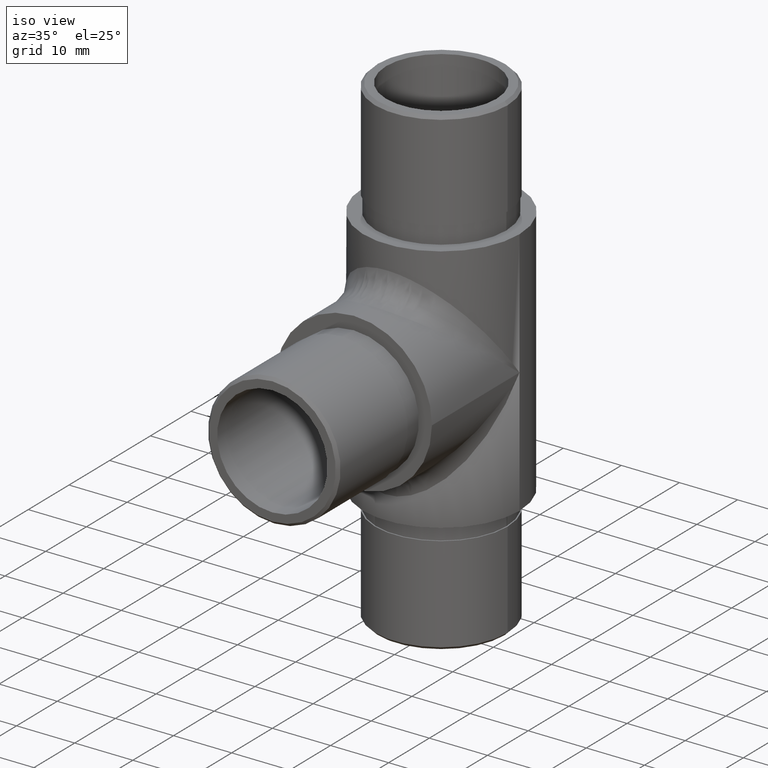
[diagram: clean part render]
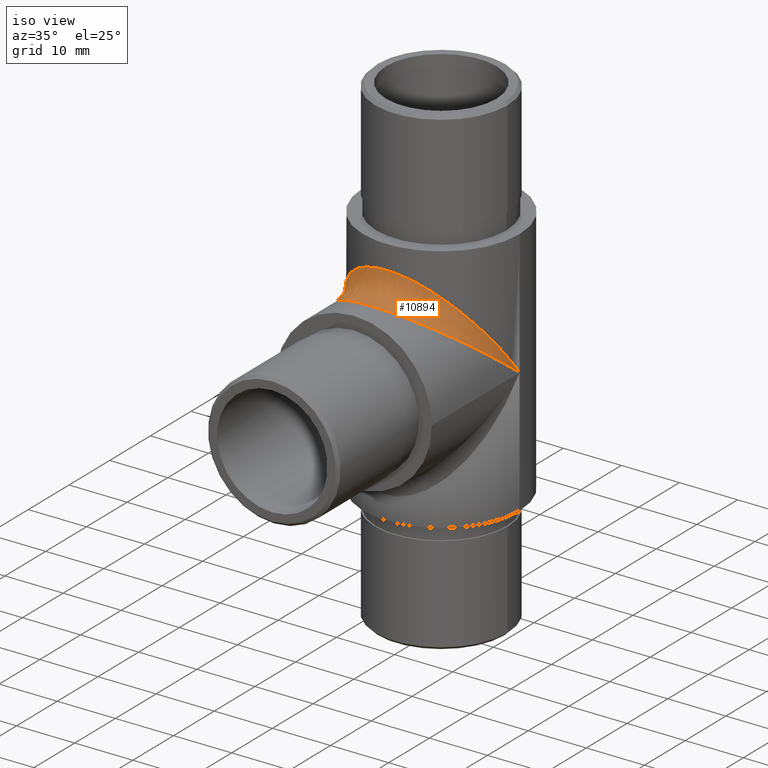
[diagram: same view with one face highlighted and labeled with its STEP entity id]
A machine part, iso view. The second image highlights one B-rep face of the part: STEP entity #10894.
In plain terms, the highlighted face is a freeform B-spline surface patch.
Its self-contained STEP definition (entity closure, byte-faithful):
#476 = CARTESIAN_POINT ( 'NONE',  ( 13.01982392487375700, 36.97551917981839200, 3.487350546204532900 ) ) ;
#614 = CARTESIAN_POINT ( 'NONE',  ( -12.76305610663408500, 35.87733676126259000, 4.333800605209387600 ) ) ;
#672 = CARTESIAN_POINT ( 'NONE',  ( 3.487350545992933300, 24.60810948030648900, 13.01982392491565800 ) ) ;
#678 = CARTESIAN_POINT ( 'NONE',  ( 13.44999999999999400, 6.599999999994062200, 26.90000000000000900 ) ) ;
#715 = CARTESIAN_POINT ( 'NONE',  ( 5.960383725262566700, 29.41069668201132700, 15.68463515975996200 ) ) ;
#765 = CARTESIAN_POINT ( 'NONE',  ( -9.962209205124512600, 32.33118331529735200, 9.168816684698477100 ) ) ;
#818 = CARTESIAN_POINT ( 'NONE',  ( -7.054827041779410600, 29.92907421062020700, 11.57092578936716300 ) ) ;
#868 = CARTESIAN_POINT ( 'NONE',  ( -12.89222839911292000, 37.50289924576191700, 3.997100754241184300 ) ) ;
#912 = CARTESIAN_POINT ( 'NONE',  ( -13.36330011797410200, 39.21582858180408200, 1.760579116024438000 ) ) ;
#1069 = CARTESIAN_POINT ( 'NONE',  ( -13.36330011797406700, 39.73942088396597700, 2.284171418187720200 ) ) ;
#1576 = CARTESIAN_POINT ( 'NONE',  ( 12.08930331792176300, 35.53961627458730300, 7.732988550808683700 ) ) ;
#1623 = CARTESIAN_POINT ( 'NONE',  ( 13.44999999999859600, 40.48879775430319900, 1.011202245686868600 ) ) ;
#1683 = CARTESIAN_POINT ( 'NONE',  ( 13.44999999999999800, 41.49999999999711500, -3.751757152883914000E-012 ) ) ;
#1724 = CARTESIAN_POINT ( 'NONE',  ( 7.826289490384745300, 30.43128300449903300, 11.06871699549405500 ) ) ;
#1768 = CARTESIAN_POINT ( 'NONE',  ( 0.8803004409930499400, 28.04999999999250400, 17.44999999999999600 ) ) ;
#1815 = CARTESIAN_POINT ( 'NONE',  ( -0.8803004409929341400, 24.04999999999250400, 13.44999999999999800 ) ) ;
#1869 = CARTESIAN_POINT ( 'NONE',  ( -8.204362700590856200, 27.62537193332929100, 10.69419756427592600 ) ) ;
#1912 = CARTESIAN_POINT ( 'NONE',  ( 8.888119795539900300, 31.36694738161452300, 13.14659986548031000 ) ) ;
#1965 = VERTEX_POINT ( 'NONE', #8714 ) ;
#2111 = CARTESIAN_POINT ( 'NONE',  ( -13.33585166001099300, 39.47138319865461400, 2.028616801329067100 ) ) ;
#2581 = CARTESIAN_POINT ( 'NONE',  ( 13.44999999999999800, 41.49999999999668900, -3.321756333069138900E-012 ) ) ;
#2598 = EDGE_LOOP ( 'NONE', ( #8948, #14031 ) ) ;
#2673 = CARTESIAN_POINT ( 'NONE',  ( 11.67233500670811200, 34.75952343242405400, 8.745079264240832400 ) ) ;
#2763 = CARTESIAN_POINT ( 'NONE',  ( 11.67233500670943700, 32.75492073574780200, 6.740476567565897500 ) ) ;
#2812 = CARTESIAN_POINT ( 'NONE',  ( 8.204362700591621800, 27.62537193332927300, 10.69419756427541800 ) ) ;
#2822 = CARTESIAN_POINT ( 'NONE',  ( -13.45000000000000100, 41.49999999999250400, 0.0000000000000000000 ) ) ;
#2871 = CARTESIAN_POINT ( 'NONE',  ( 4.333800605359472900, 24.94123947510925300, 12.76305610657212400 ) ) ;
#2916 = CARTESIAN_POINT ( 'NONE',  ( -3.251151502455407200, 28.37768468058094100, 13.12231531940744300 ) ) ;
#2967 = CARTESIAN_POINT ( 'NONE',  ( 0.6185010550566798500, 28.04999999999250400, 13.44999999999999800 ) ) ;
#3013 = CARTESIAN_POINT ( 'NONE',  ( 6.740476567639050600, 29.82766499333196500, 15.14366140269518500 ) ) ;
#3072 = CARTESIAN_POINT ( 'NONE',  ( -13.44999999999999800, 41.49999999999710800, -3.747483135554889500E-012 ) ) ;
#3206 = CARTESIAN_POINT ( 'NONE',  ( 13.44999999999999400, 14.59999999999250000, 34.89999999999998400 ) ) ;
#3728 = CARTESIAN_POINT ( 'NONE',  ( 12.89222839911591700, 37.50289924575110200, 3.997100754241550600 ) ) ;
#3808 = CARTESIAN_POINT ( 'NONE',  ( 13.33585166000806900, 39.47138319866555600, 2.028616801328466200 ) ) ;
#3860 = CARTESIAN_POINT ( 'NONE',  ( 13.36330011797600300, 39.73942088397571100, 2.284171418187563400 ) ) ;
#3915 = CARTESIAN_POINT ( 'NONE',  ( 1.760579116241604000, 24.16248423360595500, 13.36330011793109700 ) ) ;
#3960 = CARTESIAN_POINT ( 'NONE',  ( -12.08930331792120000, 33.76701144918603600, 5.960383725407477400 ) ) ;
#4008 = CARTESIAN_POINT ( 'NONE',  ( -10.13305261838198500, 32.61188020445611400, 11.53142679792633300 ) ) ;
#4064 = CARTESIAN_POINT ( 'NONE',  ( 4.733780939930510600, 28.81696160274548300, 12.68303839724620200 ) ) ;
#4107 = CARTESIAN_POINT ( 'NONE',  ( -5.960383725262608400, 29.41069668201134500, 15.68463515975993700 ) ) ;
#4319 = VERTEX_POINT ( 'NONE', #4370 ) ;
#4370 = CARTESIAN_POINT ( 'NONE',  ( -13.45000000000000100, 41.49999999999250400, 0.0000000000000000000 ) ) ;
#4870 = CARTESIAN_POINT ( 'NONE',  ( 10.13305261838154400, 29.96857320206374500, 8.888119795536443500 ) ) ;
#4975 = CARTESIAN_POINT ( 'NONE',  ( -13.44999999999999000, 6.599999999994062200, 26.90000000000000900 ) ) ;
#5016 = CARTESIAN_POINT ( 'NONE',  ( -4.333800605360895700, 28.73694389342112400, 16.55876052488322600 ) ) ;
#5074 = CARTESIAN_POINT ( 'NONE',  ( -12.55744004400127900, 36.54091678937204800, 4.959083210619911400 ) ) ;
#5127 = CARTESIAN_POINT ( 'NONE',  ( 6.740476567637457200, 26.35633859729845000, 11.67233500666185200 ) ) ;
#5174 = CARTESIAN_POINT ( 'NONE',  ( -3.487350545992760100, 24.60810948030447400, 13.01982392491569100 ) ) ;
#5218 = CARTESIAN_POINT ( 'NONE',  ( 5.960383725262731900, 25.81536484023254000, 12.08930331798095300 ) ) ;
#5473 = CARTESIAN_POINT ( 'NONE',  ( -13.45000000000018600, 40.35788721521078100, 0.8803104272429027600 ) ) ;
#5977 = CARTESIAN_POINT ( 'NONE',  ( 9.962209205126809400, 32.33118331530010200, 9.168816684697034700 ) ) ;
#6125 = CARTESIAN_POINT ( 'NONE',  ( -10.13305261838215000, 29.96857320206616700, 8.888119795535841300 ) ) ;
#6173 = CARTESIAN_POINT ( 'NONE',  ( 8.204362700591618200, 30.80580243571682800, 13.87462806666209200 ) ) ;
#6216 = CARTESIAN_POINT ( 'NONE',  ( -1.760579116241890000, 28.13669988206152800, 17.33751576638452400 ) ) ;
#6270 = CARTESIAN_POINT ( 'NONE',  ( -11.67233500670951200, 32.75492073575224300, 6.740476567565783800 ) ) ;
#6323 = CARTESIAN_POINT ( 'NONE',  ( -8.888119795538012000, 28.35340013451097400, 10.13305261838024200 ) ) ;
#6938 =( BOUNDED_CURVE ( )  B_SPLINE_CURVE ( 3, ( #8162, #678, #4975, #2822 ),
 .UNSPECIFIED., .F., .F. ) 
 B_SPLINE_CURVE_WITH_KNOTS ( ( 4, 4 ),
 ( 1.570796326794896800, 4.712388980384689700 ),
 .UNSPECIFIED. ) 
 CURVE ( )  GEOMETRIC_REPRESENTATION_ITEM ( )  RATIONAL_B_SPLINE_CURVE ( ( 1.000000000000000000, 0.3333333333333333700, 0.3333333333333333700, 1.000000000000000000 ) ) 
 REPRESENTATION_ITEM ( '' )  );
#7199 = CARTESIAN_POINT ( 'NONE',  ( -10.69419756423298700, 33.29563729933760600, 10.64432186814122400 ) ) ;
#7242 = CARTESIAN_POINT ( 'NONE',  ( -12.76305610663505500, 37.16619939478454900, 5.622663238729241000 ) ) ;
#7302 = CARTESIAN_POINT ( 'NONE',  ( -6.740476567639461800, 29.82766499333223800, 15.14366140269403600 ) ) ;
#7342 = CARTESIAN_POINT ( 'NONE',  ( -0.8803004409930466100, 28.04999999999250400, 17.44999999999999600 ) ) ;
#7500 = CARTESIAN_POINT ( 'NONE',  ( -13.01982392487378000, 36.97551917982450200, 3.487350546204431200 ) ) ;
#7544 = CARTESIAN_POINT ( 'NONE',  ( -13.44999999999999800, 41.49999999999624800, -2.888461213364656900E-012 ) ) ;
#7590 = CARTESIAN_POINT ( 'NONE',  ( -13.44999999999859600, 40.48879775431578300, 1.011202245691079400 ) ) ;
#7960 = FACE_OUTER_BOUND ( 'NONE', #2598, .T. ) ;
#8101 = CARTESIAN_POINT ( 'NONE',  ( 11.70026303290309100, 34.73253009091049400, 6.767469909086903700 ) ) ;
#8162 = CARTESIAN_POINT ( 'NONE',  ( 13.45000000000000100, 41.49999999999250400, 0.0000000000000000000 ) ) ;
#8197 = CARTESIAN_POINT ( 'NONE',  ( 13.44999999999999800, 41.49999999999625500, -2.891755513254363700E-012 ) ) ;
#8244 = CARTESIAN_POINT ( 'NONE',  ( 10.13305261838198700, 32.61188020445612800, 11.53142679792754200 ) ) ;
#8299 = CARTESIAN_POINT ( 'NONE',  ( 2.554661403383726700, 28.24603728105214600, 13.25396271894142300 ) ) ;
#8360 = CARTESIAN_POINT ( 'NONE',  ( 1.231024211894390800, 28.08116757911519600, 13.41883242087635600 ) ) ;
#8399 = CARTESIAN_POINT ( 'NONE',  ( -11.16885367848702300, 33.87956908818716100, 7.620430911803512500 ) ) ;
#8448 = CARTESIAN_POINT ( 'NONE',  ( 3.487350545993469700, 28.48017607507687600, 16.89189051968601200 ) ) ;
#8714 = CARTESIAN_POINT ( 'NONE',  ( 13.45000000000000100, 41.49999999999250400, 0.0000000000000000000 ) ) ;
#8948 = ORIENTED_EDGE ( 'NONE', *, *, #10765, .F. ) ;
#9105 = EDGE_CURVE ( 'NONE', #1965, #4319, #6938, .T. ) ;
#9240 = CARTESIAN_POINT ( 'NONE',  ( 13.36330011797411500, 39.21582858181013600, 1.760579116024375300 ) ) ;
#9286 = CARTESIAN_POINT ( 'NONE',  ( 13.44999999999980700, 40.61968957274084600, 1.142112784777824500 ) ) ;
#9349 = CARTESIAN_POINT ( 'NONE',  ( 4.333800605360854000, 28.73694389342110600, 16.55876052488325100 ) ) ;
#9393 = CARTESIAN_POINT ( 'NONE',  ( -5.960383725262022200, 25.81536484023256500, 12.08930331798124100 ) ) ;
#9438 = CARTESIAN_POINT ( 'NONE',  ( -0.6185010550566775200, 28.04999999999250400, 13.44999999999999800 ) ) ;
#9491 = CARTESIAN_POINT ( 'NONE',  ( 7.054827041784241400, 29.92907421062676600, 11.57092578937167100 ) ) ;
#9548 = CARTESIAN_POINT ( 'NONE',  ( -3.487350545993346300, 28.48017607507685200, 16.89189051968803000 ) ) ;
#9698 = CARTESIAN_POINT ( 'NONE',  ( -13.01982392487447600, 38.01264945379346500, 4.524480820168693500 ) ) ;
#9749 =( BOUNDED_CURVE ( )  B_SPLINE_CURVE ( 3, ( #12771, #10609, #3206, #13020 ),
 .UNSPECIFIED., .F., .F. ) 
 B_SPLINE_CURVE_WITH_KNOTS ( ( 4, 4 ),
 ( 1.570796326794896600, 4.712388980384689700 ),
 .UNSPECIFIED. ) 
 CURVE ( )  GEOMETRIC_REPRESENTATION_ITEM ( )  RATIONAL_B_SPLINE_CURVE ( ( 1.000000000000000000, 0.3333333333333333700, 0.3333333333333333700, 1.000000000000000000 ) ) 
 REPRESENTATION_ITEM ( '' )  );
#10283 = CARTESIAN_POINT ( 'NONE',  ( 10.69419756423101800, 30.85567813185696600, 8.204362700658407400 ) ) ;
#10425 = CARTESIAN_POINT ( 'NONE',  ( 3.251151502457130700, 28.37768468058313700, 13.12231531941066700 ) ) ;
#10471 = CARTESIAN_POINT ( 'NONE',  ( -8.888119795539898500, 31.36694738161452300, 13.14659986548152500 ) ) ;
#10533 = CARTESIAN_POINT ( 'NONE',  ( -9.277602110788350800, 31.63565125913012800, 9.864348740862944000 ) ) ;
#10572 = CARTESIAN_POINT ( 'NONE',  ( -11.67233500670908000, 34.75952343242550300, 8.745079264238970800 ) ) ;
#10609 = CARTESIAN_POINT ( 'NONE',  ( -13.44999999999999900, 14.59999999999250000, 34.89999999999998400 ) ) ;
#10619 = CARTESIAN_POINT ( 'NONE',  ( -2.554661403384747200, 28.24603728105012500, 13.25396271894342500 ) ) ;
#10765 = EDGE_CURVE ( 'NONE', #4319, #1965, #9749, .T. ) ;
#10894 = ADVANCED_FACE ( 'NONE', ( #7960 ), #11836, .F. ) ;
#11352 = CARTESIAN_POINT ( 'NONE',  ( 13.01982392487252900, 38.01264945378368800, 4.524480820168901300 ) ) ;
#11399 = CARTESIAN_POINT ( 'NONE',  ( 10.69419756423393000, 33.29563729933901300, 10.64432186813940400 ) ) ;
#11439 = CARTESIAN_POINT ( 'NONE',  ( 12.08930331792076100, 33.76701144918584400, 5.960383725408529900 ) ) ;
#11481 = CARTESIAN_POINT ( 'NONE',  ( 9.277602110787102100, 31.63565125913008900, 9.864348740862995500 ) ) ;
#11537 = CARTESIAN_POINT ( 'NONE',  ( 8.888119795538621300, 28.35340013451340700, 10.13305261837963500 ) ) ;
#11591 = CARTESIAN_POINT ( 'NONE',  ( -12.08930331792144300, 35.53961627458652800, 7.732988550807139200 ) ) ;
#11634 = CARTESIAN_POINT ( 'NONE',  ( -1.760579116241818100, 24.16248423360797700, 13.36330011793105800 ) ) ;
#11682 = CARTESIAN_POINT ( 'NONE',  ( -11.70026303290132200, 34.73253009090994700, 6.767469909084724100 ) ) ;
#11743 = CARTESIAN_POINT ( 'NONE',  ( -8.204362700591245200, 30.80580243571658300, 13.87462806666320800 ) ) ;
#11836 =( BOUNDED_SURFACE ( )  B_SPLINE_SURFACE ( 3, 2, ( 
 ( #8197, #2581, #1683 ),
 ( #13545, #1623, #9286 ),
 ( #9240, #3808, #3860 ),
 ( #476, #3728, #11352 ),
 ( #12396, #13504, #13600 ),
 ( #11439, #8101, #1576 ),
 ( #2763, #12482, #2673 ),
 ( #10283, #5977, #11399 ),
 ( #4870, #11481, #8244 ),
 ( #11537, #1724, #1912 ),
 ( #2812, #9491, #6173 ),
 ( #5127, #12725, #3013 ),
 ( #5218, #4064, #715 ),
 ( #2871, #10425, #9349 ),
 ( #672, #8299, #8448 ),
 ( #3915, #8360, #12670 ),
 ( #12828, #2967, #1768 ),
 ( #1815, #9438, #7342 ),
 ( #11634, #13799, #6216 ),
 ( #5174, #10619, #9548 ),
 ( #13840, #2916, #5016 ),
 ( #9393, #13886, #4107 ),
 ( #12624, #12779, #7302 ),
 ( #1869, #818, #11743 ),
 ( #6323, #13942, #10471 ),
 ( #6125, #10533, #4008 ),
 ( #13740, #765, #7199 ),
 ( #6270, #8399, #10572 ),
 ( #3960, #11682, #11591 ),
 ( #614, #5074, #7242 ),
 ( #7500, #868, #9698 ),
 ( #912, #2111, #1069 ),
 ( #5473, #7590, #14037 ),
 ( #7544, #11931, #3072 ) ),
 .UNSPECIFIED., .F., .F., .F. ) 
 B_SPLINE_SURFACE_WITH_KNOTS ( ( 4, 2, 2, 2, 2, 2, 2, 2, 2, 2, 2, 2, 2, 2, 2, 2, 4 ),
 ( 3, 3 ),
 ( 1.570796326794681600, 1.767145867644070600, 1.963495408493459500, 2.159844949342848400, 2.356194490192237400, 2.552544031041626300, 2.748893571891015200, 2.945243112740404200, 3.141592653589793100, 3.337942194439182100, 3.534291735288571000, 3.730641276137959900, 3.926990816987348900, 4.123340357836737800, 4.319689898686126700, 4.516039439535515700, 4.712388980384904600 ),
 ( 0.0000000000000000000, 1.000000000000000000 ),
 .UNSPECIFIED. ) 
 GEOMETRIC_REPRESENTATION_ITEM ( )  RATIONAL_B_SPLINE_SURFACE ( (
 ( 1.000000000000000000, 1.000000000000000000, 1.000000000000000000),
 ( 1.000000000000000000, 1.000009746410285100, 1.000000000000000000),
 ( 1.000000000000000000, 0.9967613244612991700, 1.000000000000000000),
 ( 1.000000000000000000, 0.9841171504864370000, 1.000000000000000000),
 ( 1.000000000000000000, 0.9747108043652704700, 1.000000000000000000),
 ( 1.000000000000000000, 0.9506740353970285500, 1.000000000000000000),
 ( 1.000000000000000000, 0.9360421842735673300, 1.000000000000000000),
 ( 1.000000000000000000, 0.9031650994128057600, 1.000000000000000000),
 ( 1.000000000000000000, 0.8849191471366230100, 1.000000000000000000),
 ( 1.000000000000000000, 0.8471316604322284300, 1.000000000000000000),
 ( 1.000000000000000000, 0.8275942695996063600, 1.000000000000000000),
 ( 1.000000000000000000, 0.7902180086437122800, 1.000000000000000000),
 ( 1.000000000000000000, 0.7723968218215497800, 1.000000000000000000),
 ( 1.000000000000000000, 0.7418334178756402800, 1.000000000000000000),
 ( 1.000000000000000000, 0.7291288940217111000, 1.000000000000000000),
 ( 1.000000000000000000, 0.7117460025216018100, 1.000000000000000000),
 ( 1.000000000000000000, 0.7071067811865475700, 1.000000000000000000),
 ( 1.000000000000000000, 0.7071067811865475700, 1.000000000000000000),
 ( 1.000000000000000000, 0.7117460025214726900, 1.000000000000000000),
 ( 1.000000000000000000, 0.7291288940218402200, 1.000000000000000000),
 ( 1.000000000000000000, 0.7418334178755052700, 1.000000000000000000),
 ( 1.000000000000000000, 0.7723968218216863400, 1.000000000000000000),
 ( 1.000000000000000000, 0.7902180086438577200, 1.000000000000000000),
 ( 1.000000000000000000, 0.8275942695994618100, 1.000000000000000000),
 ( 1.000000000000000000, 0.8471316604323059200, 1.000000000000000000),
 ( 1.000000000000000000, 0.8849191471365452900, 1.000000000000000000),
 ( 1.000000000000000000, 0.9031650994127229400, 1.000000000000000000),
 ( 1.000000000000000000, 0.9360421842736508200, 1.000000000000000000),
 ( 1.000000000000000000, 0.9506740353970922800, 1.000000000000000000),
 ( 1.000000000000000000, 0.9747108043652074100, 1.000000000000000000),
 ( 1.000000000000000000, 0.9841171504862938900, 1.000000000000000000),
 ( 1.000000000000000000, 0.9967613244614425000, 1.000000000000000000),
 ( 1.000000000000000000, 1.000009746410177400, 1.000000000000000000),
 ( 1.000000000000000000, 1.000000000000000000, 1.000000000000000000) ) ) 
 REPRESENTATION_ITEM ( '' )  SURFACE ( )  );
#11931 = CARTESIAN_POINT ( 'NONE',  ( -13.44999999999999800, 41.49999999999668200, -3.317972174459773400E-012 ) ) ;
#12396 = CARTESIAN_POINT ( 'NONE',  ( 12.76305610663450500, 35.87733676126273300, 4.333800605208373300 ) ) ;
#12482 = CARTESIAN_POINT ( 'NONE',  ( 11.16885367848489000, 33.87956908818459600, 7.620430911804794100 ) ) ;
#12624 = CARTESIAN_POINT ( 'NONE',  ( -6.740476567638261000, 26.35633859729846800, 11.67233500666131700 ) ) ;
#12670 = CARTESIAN_POINT ( 'NONE',  ( 1.760579116241725000, 28.13669988206150300, 17.33751576638654500 ) ) ;
#12725 = CARTESIAN_POINT ( 'NONE',  ( 5.506249729539828100, 29.11675223912397900, 12.38324776086312400 ) ) ;
#12771 = CARTESIAN_POINT ( 'NONE',  ( -13.45000000000000100, 41.49999999999250400, 0.0000000000000000000 ) ) ;
#12779 = CARTESIAN_POINT ( 'NONE',  ( -5.506249729545214000, 29.11675223913102800, 12.38324776086768300 ) ) ;
#12828 = CARTESIAN_POINT ( 'NONE',  ( 0.8803004409929373600, 24.04999999999250400, 13.44999999999999800 ) ) ;
#13020 = CARTESIAN_POINT ( 'NONE',  ( 13.45000000000000100, 41.49999999999250400, 0.0000000000000000000 ) ) ;
#13504 = CARTESIAN_POINT ( 'NONE',  ( 12.55744004399948100, 36.54091678937136600, 4.959083210617943200 ) ) ;
#13545 = CARTESIAN_POINT ( 'NONE',  ( 13.45000000000018600, 40.35788721520159300, 0.8803104272370246800 ) ) ;
#13600 = CARTESIAN_POINT ( 'NONE',  ( 12.76305610663472100, 37.16619939478373900, 5.622663238727747100 ) ) ;
#13740 = CARTESIAN_POINT ( 'NONE',  ( -10.69419756423096500, 30.85567813185256700, 8.204362700658489200 ) ) ;
#13799 = CARTESIAN_POINT ( 'NONE',  ( -1.231024211893133800, 28.08116757911722100, 13.41883242087432000 ) ) ;
#13840 = CARTESIAN_POINT ( 'NONE',  ( -4.333800605360266000, 24.94123947510927400, 12.76305610657179600 ) ) ;
#13886 = CARTESIAN_POINT ( 'NONE',  ( -4.733780939931981500, 28.81696160274753600, 12.68303839724934400 ) ) ;
#13942 = CARTESIAN_POINT ( 'NONE',  ( -7.826289490383564900, 30.43128300449907200, 11.06871699549399900 ) ) ;
#14031 = ORIENTED_EDGE ( 'NONE', *, *, #9105, .F. ) ;
#14037 = CARTESIAN_POINT ( 'NONE',  ( -13.44999999999980700, 40.61968957275421800, 1.142112784782288100 ) ) ;